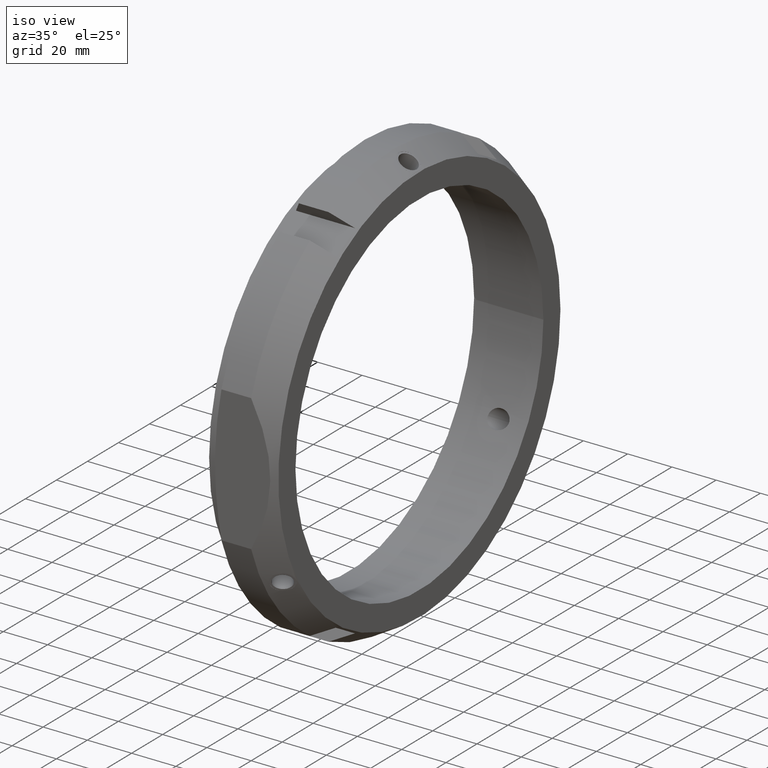
[diagram: clean part render]
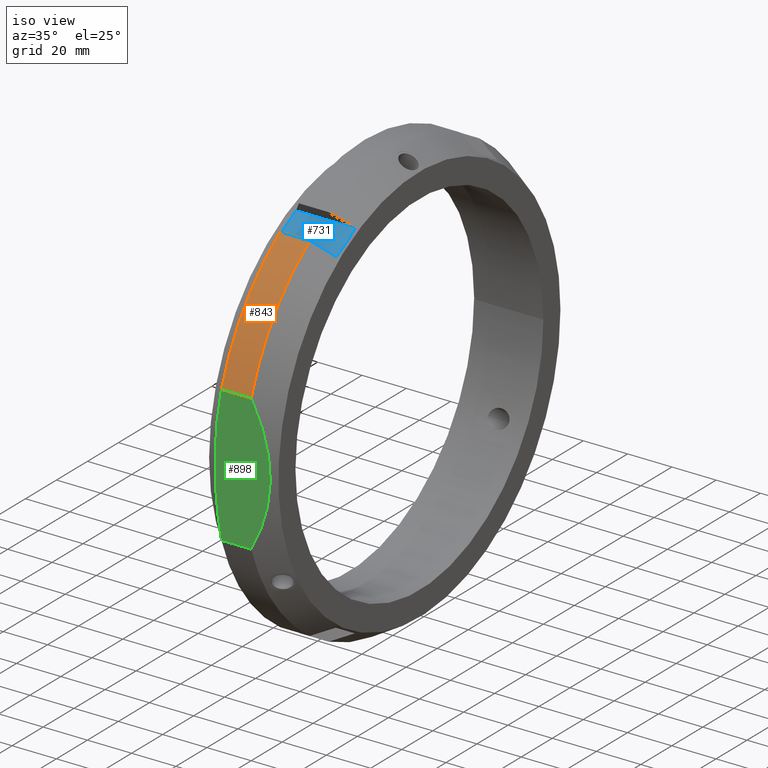
[diagram: same view with three faces highlighted in distinct colors, each labeled with its STEP entity id]
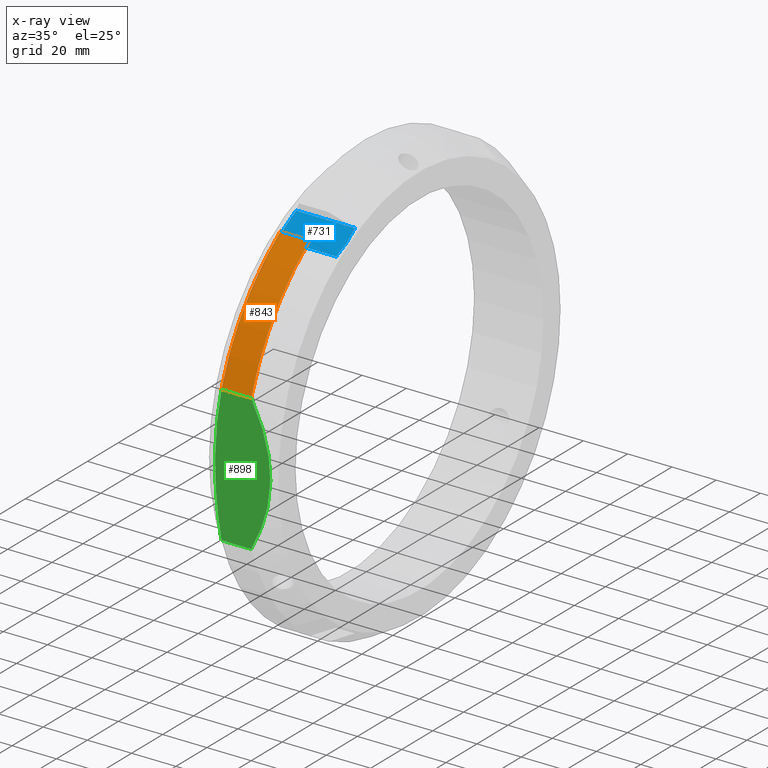
[diagram: x-ray of the same camera — body ghosted, the three highlighted faces saturated]
A machine part, iso view with three faces highlighted in distinct colors.
The next image is the same camera in x-ray (body ghosted, the three faces saturated) — at least one of them is partly hidden behind the body in this view.
Their STEP definitions:

[orange] entity #843 — the highlighted cylindrical surface (partial cylindrical patch) has radius 97.5 mm, axis along (1, 0, 0).
#394=CARTESIAN_POINT('',(7.330127018922159,-92.500000000000057,30.822070014844726));
#395=VERTEX_POINT('',#394);
#409=CARTESIAN_POINT('',(7.330127018922159,-54.68637447795259,80.719579077551771));
#410=VERTEX_POINT('',#409);
#411=CARTESIAN_POINT('',(7.330127018922159,0.0,0.0));
#412=DIRECTION('',(1.0,0.0,0.0));
#413=DIRECTION('',(0.0,1.0,0.0));
#414=AXIS2_PLACEMENT_3D('',#411,#412,#413);
#415=CIRCLE('',#414,97.5);
#416=EDGE_CURVE('',#410,#395,#415,.T.);
#769=CARTESIAN_POINT('',(20.741669750802245,-54.686374477952604,80.719579077551785));
#770=VERTEX_POINT('',#769);
#771=CARTESIAN_POINT('',(20.741669750802245,-54.68637447795259,80.719579077551771));
#772=DIRECTION('',(-1.0,0.0,0.0));
#773=VECTOR('',#772,13.411542731880086);
#774=LINE('',#771,#773);
#775=EDGE_CURVE('',#770,#410,#774,.T.);
#819=CARTESIAN_POINT('',(14.035898384862209,0.0,0.0));
#820=DIRECTION('',(1.0,0.0,0.0));
#821=DIRECTION('',(0.0,1.0,0.0));
#822=AXIS2_PLACEMENT_3D('',#819,#820,#821);
#823=CYLINDRICAL_SURFACE('',#822,97.5);
#824=ORIENTED_EDGE('',*,*,#775,.T.);
#825=ORIENTED_EDGE('',*,*,#416,.T.);
#826=CARTESIAN_POINT('',(20.741669750802259,-92.500000000000057,30.822070014844726));
#827=VERTEX_POINT('',#826);
#828=CARTESIAN_POINT('',(7.330127018922159,-92.500000000000057,30.822070014844726));
#829=DIRECTION('',(1.0,0.0,0.0));
#830=VECTOR('',#829,13.4115427318801);
#831=LINE('',#828,#830);
#832=EDGE_CURVE('',#395,#827,#831,.T.);
#833=ORIENTED_EDGE('',*,*,#832,.T.);
#834=CARTESIAN_POINT('',(20.741669750802259,0.0,0.0));
#835=DIRECTION('',(1.0,0.0,0.0));
#836=DIRECTION('',(0.0,1.0,0.0));
#837=AXIS2_PLACEMENT_3D('',#834,#835,#836);
#838=CIRCLE('',#837,97.5);
#839=EDGE_CURVE('',#770,#827,#838,.T.);
#840=ORIENTED_EDGE('',*,*,#839,.F.);
#841=EDGE_LOOP('',(#824,#825,#833,#840));
#842=FACE_OUTER_BOUND('',#841,.T.);
#843=ADVANCED_FACE('',(#842),#823,.T.);

[blue] entity #731 — the highlighted planar face has unit normal (0, 0.5, -0.866).
#418=CARTESIAN_POINT('',(4.020390926439884,-51.812177826491101,75.74132444627611));
#419=VERTEX_POINT('',#418);
#433=CARTESIAN_POINT('',(4.020390926439892,-39.687822173508962,82.741324446276124));
#434=VERTEX_POINT('',#433);
#435=CARTESIAN_POINT('',(4.020390926439884,-51.812177826491101,75.74132444627611));
#436=CARTESIAN_POINT('',(3.712109632995452,-45.749999999900211,79.241324446333735));
#437=CARTESIAN_POINT('',(4.020390926439892,-39.687822173508962,82.741324446276124));
#445=(BOUNDED_CURVE()B_SPLINE_CURVE(2,(#435,#436,#437),.UNSPECIFIED.,.F.,.U.)B_SPLINE_CURVE_WITH_KNOTS((3,3),(2.659556565316226,4.110967786608091),.UNSPECIFIED.)CURVE()GEOMETRIC_REPRESENTATION_ITEM()RATIONAL_B_SPLINE_CURVE((1.031280151536851,1.034293618954943,1.031280151536851))REPRESENTATION_ITEM(''));
#446=EDGE_CURVE('',#419,#434,#445,.T.);
#694=CARTESIAN_POINT('',(0.0,-51.812177826491101,75.74132444627611));
#695=DIRECTION('',(0.0,0.500000000000001,-0.866025403784438));
#696=DIRECTION('',(0.0,0.866025403784438,0.500000000000001));
#697=AXIS2_PLACEMENT_3D('',#694,#695,#696);
#698=PLANE('',#697);
#699=ORIENTED_EDGE('',*,*,#446,.F.);
#700=CARTESIAN_POINT('',(30.670878028249128,-51.812177826491094,75.741324446276124));
#701=VERTEX_POINT('',#700);
#702=CARTESIAN_POINT('',(4.020390926439884,-51.812177826491101,75.74132444627611));
#703=DIRECTION('',(1.0,0.0,0.0));
#704=VECTOR('',#703,26.650487101809244);
#705=LINE('',#702,#704);
#706=EDGE_CURVE('',#419,#701,#705,.T.);
#707=ORIENTED_EDGE('',*,*,#706,.T.);
#708=CARTESIAN_POINT('',(30.67087802824911,-39.68782217350897,82.741324446276124));
#709=VERTEX_POINT('',#708);
#710=CARTESIAN_POINT('',(30.67087802824911,-39.68782217350897,82.741324446276124));
#711=CARTESIAN_POINT('',(31.595721908618987,-45.750000000000256,79.241324446275996));
#712=CARTESIAN_POINT('',(30.670878028249128,-51.812177826491094,75.741324446276124));
#720=(BOUNDED_CURVE()B_SPLINE_CURVE(2,(#710,#711,#712),.UNSPECIFIED.,.F.,.U.)B_SPLINE_CURVE_WITH_KNOTS((3,3),(2.768711603023782,4.279692471658644),.UNSPECIFIED.)CURVE()GEOMETRIC_REPRESENTATION_ITEM()RATIONAL_B_SPLINE_CURVE((1.031280151536802,1.034293618955007,1.031280151536801))REPRESENTATION_ITEM(''));
#721=EDGE_CURVE('',#709,#701,#720,.T.);
#722=ORIENTED_EDGE('',*,*,#721,.F.);
#723=CARTESIAN_POINT('',(4.020390926439892,-39.68782217350897,82.741324446276124));
#724=DIRECTION('',(1.0,0.0,0.0));
#725=VECTOR('',#724,26.650487101809219);
#726=LINE('',#723,#725);
#727=EDGE_CURVE('',#434,#709,#726,.T.);
#728=ORIENTED_EDGE('',*,*,#727,.F.);
#729=EDGE_LOOP('',(#699,#707,#722,#728));
#730=FACE_OUTER_BOUND('',#729,.T.);
#731=ADVANCED_FACE('',(#730),#698,.F.);

[green] entity #898 — the highlighted planar face has unit normal (0, 1, 0).
#385=CARTESIAN_POINT('',(7.330127018922159,-92.500000000000014,-30.822070014844812));
#386=VERTEX_POINT('',#385);
#394=CARTESIAN_POINT('',(7.330127018922159,-92.500000000000057,30.822070014844726));
#395=VERTEX_POINT('',#394);
#396=CARTESIAN_POINT('',(7.33012701892215,-92.500000000000028,-30.822070014844726));
#397=CARTESIAN_POINT('',(1.704662857587416,-92.500000000000028,-3.264830E-014));
#398=CARTESIAN_POINT('',(7.330127018922146,-92.500000000000057,30.822070014844634));
#406=(BOUNDED_CURVE()B_SPLINE_CURVE(2,(#396,#397,#398),.UNSPECIFIED.,.F.,.U.)B_SPLINE_CURVE_WITH_KNOTS((3,3),(0.0,6.191391873668863),.UNSPECIFIED.)CURVE()GEOMETRIC_REPRESENTATION_ITEM()RATIONAL_B_SPLINE_CURVE((1.0,1.054054054054058,1.0))REPRESENTATION_ITEM(''));
#407=EDGE_CURVE('',#386,#395,#406,.T.);
#575=CARTESIAN_POINT('',(20.741669750802259,-92.500000000000014,-30.822070014844812));
#576=VERTEX_POINT('',#575);
#584=CARTESIAN_POINT('',(20.741669750802259,-92.500000000000014,-30.822070014844812));
#585=DIRECTION('',(-1.0,0.0,0.0));
#586=VECTOR('',#585,13.4115427318801);
#587=LINE('',#584,#586);
#588=EDGE_CURVE('',#576,#386,#587,.T.);
#826=CARTESIAN_POINT('',(20.741669750802259,-92.500000000000057,30.822070014844726));
#827=VERTEX_POINT('',#826);
#828=CARTESIAN_POINT('',(7.330127018922159,-92.500000000000057,30.822070014844726));
#829=DIRECTION('',(1.0,0.0,0.0));
#830=VECTOR('',#829,13.4115427318801);
#831=LINE('',#828,#830);
#832=EDGE_CURVE('',#395,#827,#831,.T.);
#875=CARTESIAN_POINT('',(0.0,-92.5,-100.00000000000003));
#876=DIRECTION('',(0.0,1.0,0.0));
#877=DIRECTION('',(0.0,0.0,1.0));
#878=AXIS2_PLACEMENT_3D('',#875,#876,#877);
#879=PLANE('',#878);
#880=ORIENTED_EDGE('',*,*,#407,.F.);
#881=ORIENTED_EDGE('',*,*,#588,.F.);
#882=CARTESIAN_POINT('',(20.741669750802263,-92.500000000000071,30.822070014844705));
#883=CARTESIAN_POINT('',(37.618062234806587,-92.500000000000057,-4.218847E-014));
#884=CARTESIAN_POINT('',(20.741669750802263,-92.500000000000028,-30.82207001484479));
#892=(BOUNDED_CURVE()B_SPLINE_CURVE(2,(#882,#883,#884),.UNSPECIFIED.,.F.,.U.)B_SPLINE_CURVE_WITH_KNOTS((3,3),(0.0,6.40312423743282),.UNSPECIFIED.)CURVE()GEOMETRIC_REPRESENTATION_ITEM()RATIONAL_B_SPLINE_CURVE((1.0,1.054054054054052,1.0))REPRESENTATION_ITEM(''));
#893=EDGE_CURVE('',#827,#576,#892,.T.);
#894=ORIENTED_EDGE('',*,*,#893,.F.);
#895=ORIENTED_EDGE('',*,*,#832,.F.);
#896=EDGE_LOOP('',(#880,#881,#894,#895));
#897=FACE_OUTER_BOUND('',#896,.T.);
#898=ADVANCED_FACE('',(#897),#879,.F.);